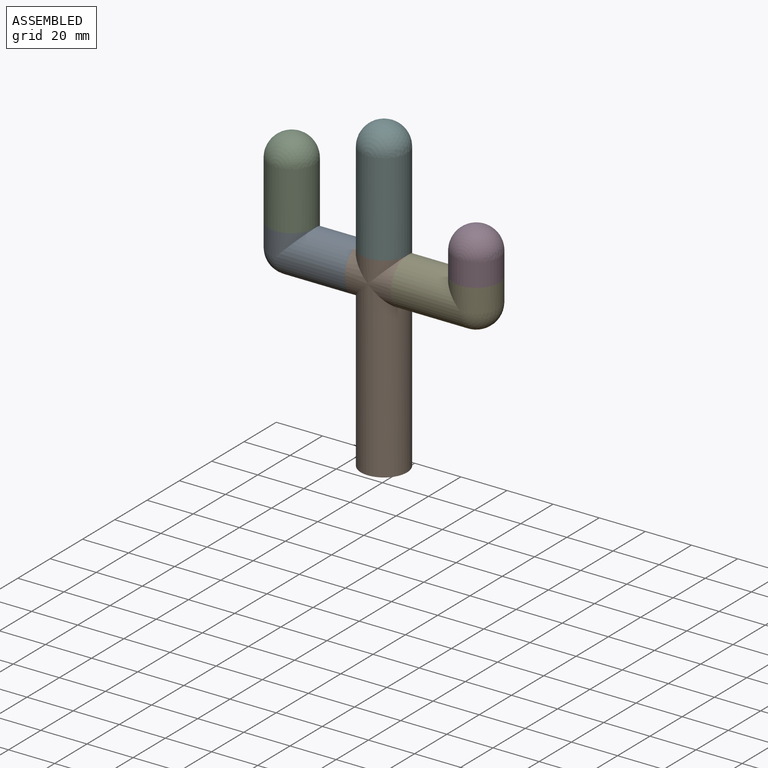
[diagram: assembled view]
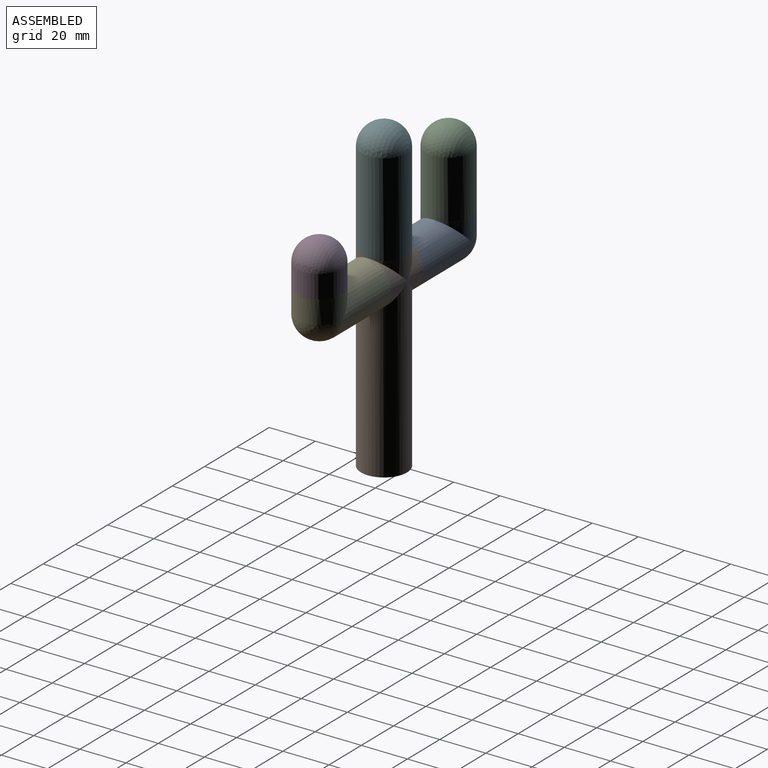
[diagram: assembled view, second angle]
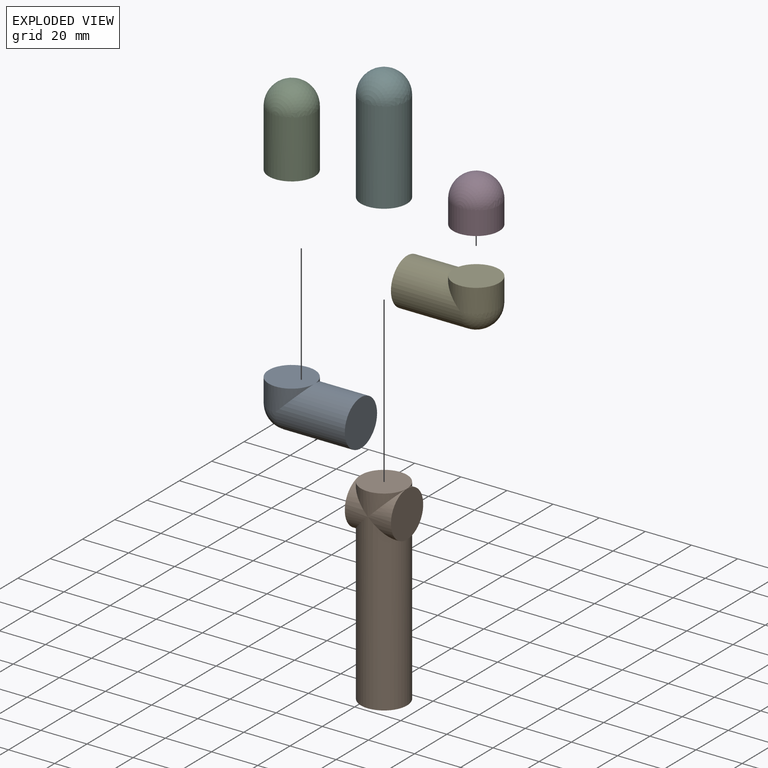
[diagram: exploded view]
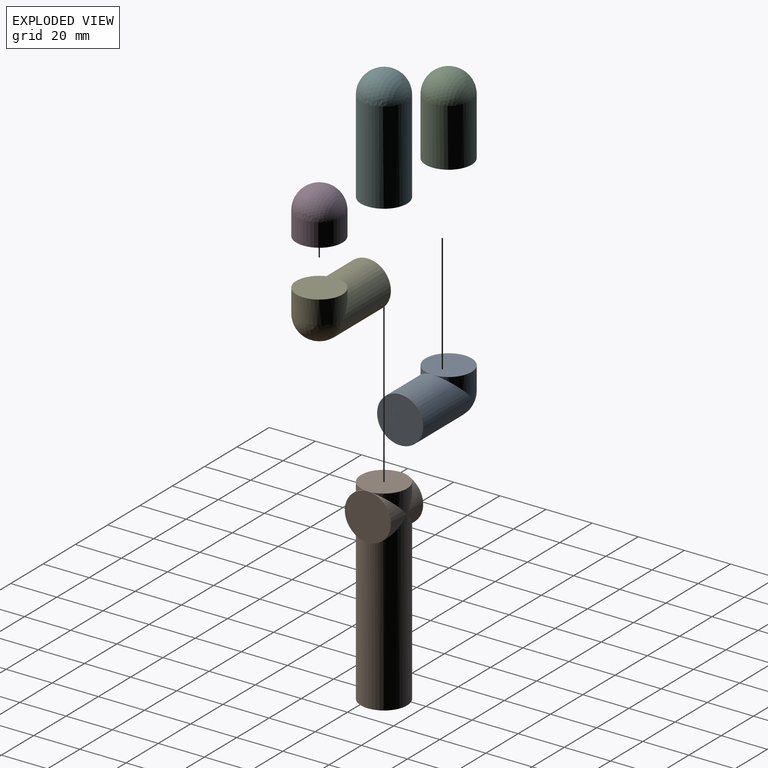
[diagram: exploded view, second angle]
ASSEMBLY  parts=6 mates=5
PART A: 5 faces, bbox 20x20x40 mm
  f0: cylinder r=10mm len=30mm, axis (0,0,-1), area 1685mm2, adj f1,f2,f4
  f1: plane 20x20mm, normal (0,0,-1), area 314.2mm2, adj f0
  f2: cylinder r=10mm len=20mm, axis (0,1,0), area 428.3mm2, adj f0,f3,f4
  f3: plane 20x20mm, normal (0,-1,0), area 314.2mm2, adj f2
  f4: sphere r=10mm, area 314.2mm2, adj f0,f2
PART B: 11 faces, bbox 20x20x85 mm
  f0: cylinder r=10mm len=20mm, axis (0,0,-1), area 114.2mm2, adj f2,f4,f9
  f1: cylinder r=10mm len=20mm, axis (0,0,-1), area 114.2mm2, adj f2,f5,f8
  f2: plane 20x20mm, normal (0,0,1), area 314.2mm2, adj f0,f1
  f3: plane 20x20mm, normal (-1,0,0), area 314.2mm2, adj f4,f5
  f4: cylinder r=10mm len=20mm, axis (-1,0,0), area 114.2mm2, adj f0,f3,f7
  f5: cylinder r=10mm len=20mm, axis (-1,0,0), area 114.2mm2, adj f1,f3,f7
  f6: plane 20x20mm, normal (0,0,-1), area 314.2mm2, adj f7
  f7: cylinder r=10mm len=75mm, axis (0,0,-1), area 4312.4mm2, adj f4,f5,f6,f8,f9
  f8: cylinder r=10mm len=20mm, axis (-1,0,0), area 114.2mm2, adj f1,f7,f10
  f9: cylinder r=10mm len=20mm, axis (-1,0,0), area 114.2mm2, adj f0,f7,f10
  f10: plane 20x20mm, normal (1,0,0), area 314.2mm2, adj f8,f9
PART C: 3 faces, bbox 20x20x35 mm
  f0: cylinder r=10mm len=25mm, axis (0,0,-1), area 1570.8mm2, adj f1,f2
  f1: plane 20x20mm, normal (0,0,-1), area 314.2mm2, adj f0
  f2: sphere r=10mm, area 628.3mm2, adj f0
PART D: 3 faces, bbox 20x20x20 mm
  f0: cylinder r=10mm len=20mm, axis (0,0,-1), area 628.3mm2, adj f1,f2
  f1: plane 20x20mm, normal (0,0,-1), area 314.2mm2, adj f0
  f2: sphere r=10mm, area 628.3mm2, adj f0
PART E: same geometry as A
PART F: 3 faces, bbox 20x20x50 mm
  f0: cylinder r=10mm len=40mm, axis (0,0,-1), area 2513.3mm2, adj f1,f2
  f1: plane 20x20mm, normal (0,0,-1), area 314.2mm2, adj f0
  f2: sphere r=10mm, area 628.3mm2, adj f0
PLACE A rot(axis=(-0.58,-0.58,0.58),120deg) t=(-42.3,-32.87,71.33)mm
PLACE B t=(-32.3,7.23,-3.67)mm
PLACE C t=(-32.3,47.91,81.33)mm
PLACE D t=(-32.3,47.91,81.33)mm
PLACE E rot(axis=(-0.58,0.58,-0.58),120deg) t=(-22.3,47.34,71.33)mm
PLACE F t=(-32.3,47.91,81.33)mm
MATE planar D.f0 <-> E.f2  axis (0,0,-1) through (7.7,7.23,81.33)mm
MATE planar F.f0 <-> B.f0  axis (0,0,-1) through (-32.3,7.23,81.33)mm
MATE planar A.f0 <-> B.f4  axis (1,0,0) through (-42.3,7.23,71.33)mm
MATE planar C.f0 <-> A.f2  axis (0,0,-1) through (-72.3,7.23,81.33)mm
MATE planar E.f0 <-> B.f4  axis (-1,0,0) through (-22.3,7.23,71.33)mm
